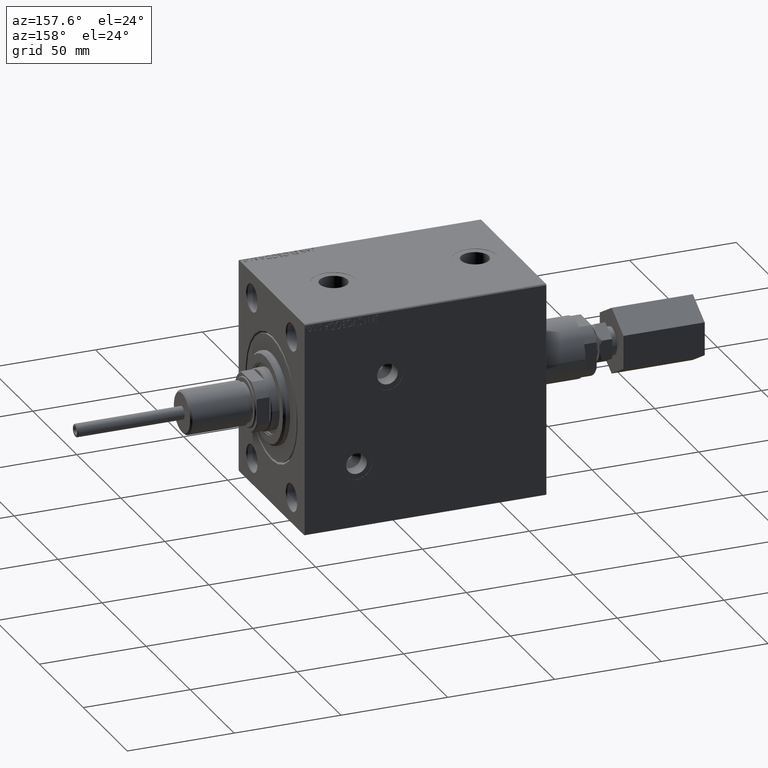
[diagram: clean part render]
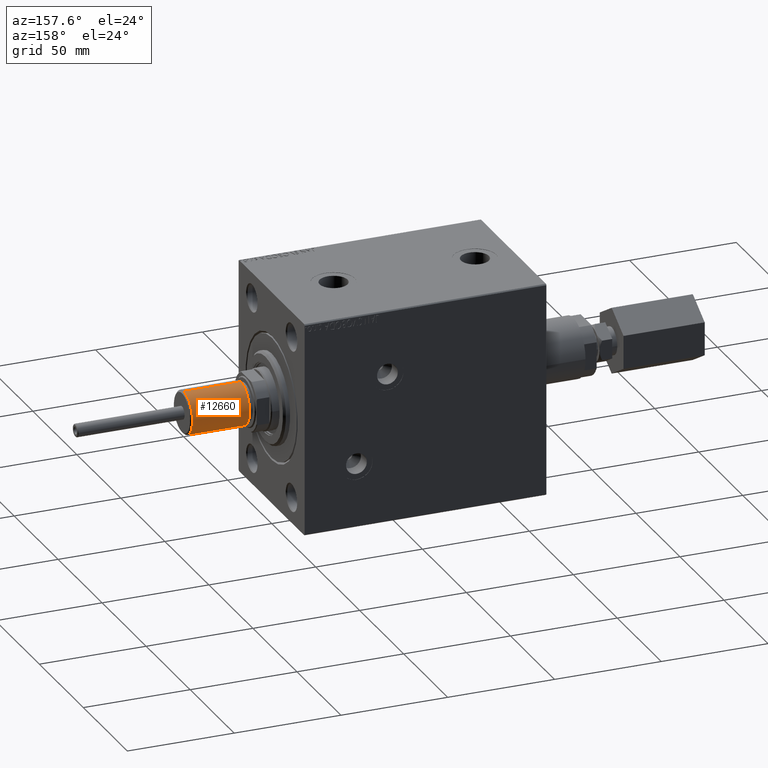
[diagram: same view with one face highlighted and labeled with its STEP entity id]
A machine part, auxiliary view. The second image highlights one B-rep face of the part: STEP entity #12660.
In plain terms, the highlighted cylindrical surface (edge-blend (fillet) strip) has radius 10 mm, axis along (1, -0, -0).
Its self-contained STEP definition (entity closure, byte-faithful):
#2691 = CIRCLE ( 'NONE', #31012, 10.00000000000000000 ) ;
#5538 = DIRECTION ( 'NONE',  ( 1.000000000000000000, 0.000000000000000000, 0.000000000000000000 ) ) ;
#6002 = DIRECTION ( 'NONE',  ( -0.000000000000000000, -0.000000000000000000, 1.000000000000000000 ) ) ;
#6926 = DIRECTION ( 'NONE',  ( -1.000000000000000000, 0.000000000000000000, 0.000000000000000000 ) ) ;
#7434 = EDGE_CURVE ( 'NONE', #22596, #40650, #43033, .T. ) ;
#9457 = DIRECTION ( 'NONE',  ( -0.000000000000000000, -0.000000000000000000, -1.000000000000000000 ) ) ;
#10360 = AXIS2_PLACEMENT_3D ( 'NONE', #39778, #6002, #21491 ) ;
#11234 = CARTESIAN_POINT ( 'NONE',  ( -10.00000000000000000, 0.000000000000000000, 27.50000000000000000 ) ) ;
#12103 = DIRECTION ( 'NONE',  ( -0.000000000000000000, -0.000000000000000000, -1.000000000000000000 ) ) ;
#12660 = ADVANCED_FACE ( 'NONE', ( #32796 ), #32055, .T. ) ;
#12817 = CARTESIAN_POINT ( 'NONE',  ( -10.00000000000000000, 0.000000000000000000, 27.50000000000000000 ) ) ;
#13764 = VERTEX_POINT ( 'NONE', #22414 ) ;
#13807 = CARTESIAN_POINT ( 'NONE',  ( 0.000000000000000000, 0.000000000000000000, 27.50000000000000000 ) ) ;
#14928 = AXIS2_PLACEMENT_3D ( 'NONE', #13807, #28843, #6926 ) ;
#16505 = LINE ( 'NONE', #12817, #37358 ) ;
#17948 = ORIENTED_EDGE ( 'NONE', *, *, #18405, .T. ) ;
#18405 = EDGE_CURVE ( 'NONE', #40650, #13764, #44254, .T. ) ;
#20979 = CARTESIAN_POINT ( 'NONE',  ( 10.00000000000000000, 1.224646799147353256E-15, 27.50000000000000000 ) ) ;
#21491 = DIRECTION ( 'NONE',  ( 1.000000000000000000, 0.000000000000000000, 0.000000000000000000 ) ) ;
#22414 = CARTESIAN_POINT ( 'NONE',  ( -10.00000000000000000, 0.000000000000000000, 0.7999999999999986011 ) ) ;
#22596 = VERTEX_POINT ( 'NONE', #20979 ) ;
#27710 = CARTESIAN_POINT ( 'NONE',  ( 10.00000000000000000, 1.224646799147353256E-15, 27.50000000000000000 ) ) ;
#28843 = DIRECTION ( 'NONE',  ( -0.000000000000000000, -0.000000000000000000, -1.000000000000000000 ) ) ;
#30137 = ORIENTED_EDGE ( 'NONE', *, *, #42531, .F. ) ;
#31012 = AXIS2_PLACEMENT_3D ( 'NONE', #42564, #46972, #5538 ) ;
#32055 = CYLINDRICAL_SURFACE ( 'NONE', #14928, 10.00000000000000000 ) ;
#32796 = FACE_OUTER_BOUND ( 'NONE', #46631, .T. ) ;
#35954 = VECTOR ( 'NONE', #9457, 1000.000000000000000 ) ;
#37358 = VECTOR ( 'NONE', #12103, 1000.000000000000000 ) ;
#39778 = CARTESIAN_POINT ( 'NONE',  ( 0.000000000000000000, 0.000000000000000000, 0.7999999999999986011 ) ) ;
#40408 = CARTESIAN_POINT ( 'NONE',  ( 10.00000000000000000, 1.224646799147353256E-15, 0.7999999999999986011 ) ) ;
#40650 = VERTEX_POINT ( 'NONE', #40408 ) ;
#41799 = VERTEX_POINT ( 'NONE', #11234 ) ;
#42446 = ORIENTED_EDGE ( 'NONE', *, *, #7434, .T. ) ;
#42531 = EDGE_CURVE ( 'NONE', #22596, #41799, #2691, .T. ) ;
#42564 = CARTESIAN_POINT ( 'NONE',  ( 0.000000000000000000, 0.000000000000000000, 27.50000000000000000 ) ) ;
#43033 = LINE ( 'NONE', #27710, #35954 ) ;
#44011 = EDGE_CURVE ( 'NONE', #41799, #13764, #16505, .T. ) ;
#44254 = CIRCLE ( 'NONE', #10360, 10.00000000000000000 ) ;
#46631 = EDGE_LOOP ( 'NONE', ( #30137, #42446, #17948, #48397 ) ) ;
#46972 = DIRECTION ( 'NONE',  ( 0.000000000000000000, 0.000000000000000000, 1.000000000000000000 ) ) ;
#48397 = ORIENTED_EDGE ( 'NONE', *, *, #44011, .F. ) ;